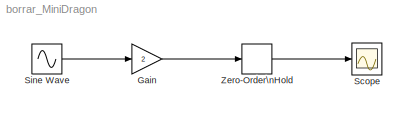
MODEL borrar_MiniDragon
KIND model
BLOCK [Gain] Gain
  Gain = 2
  SID = 1
BLOCK [Scope] Scope
  Floating = off
  NumInputPorts = 1
  Ports = [1]
  SID = 2
  ScopeSpecificationString = C++SS(StrPVP('Location','[563, 380, 887, 620]'),StrPVP('Open','off'),MxPVP('AxesTitles',54,'struct(''axes1'',''%<SignalLabel>'')'),StrPVP('TimeRange','5'),StrPVP('DataFormat','StructureWithTime'),StrPVP('LimitDataPoints','on'),StrPVP('Decimation','1'),StrPVP('BlockParamSampleInput','off'))
BLOCK [Sin] Sine Wave
  Frequency = 10
  Ports = [0, 1]
  SID = 3
  SampleTime = 0.001
BLOCK [ZeroOrderHold] Zero-Order\nHold
  SID = 4
  SampleTime = 0.02
LINE Gain:1 -> Zero-Order\nHold:1
LINE Sine Wave:1 -> Gain:1
LINE Zero-Order\nHold:1 -> Scope:1
